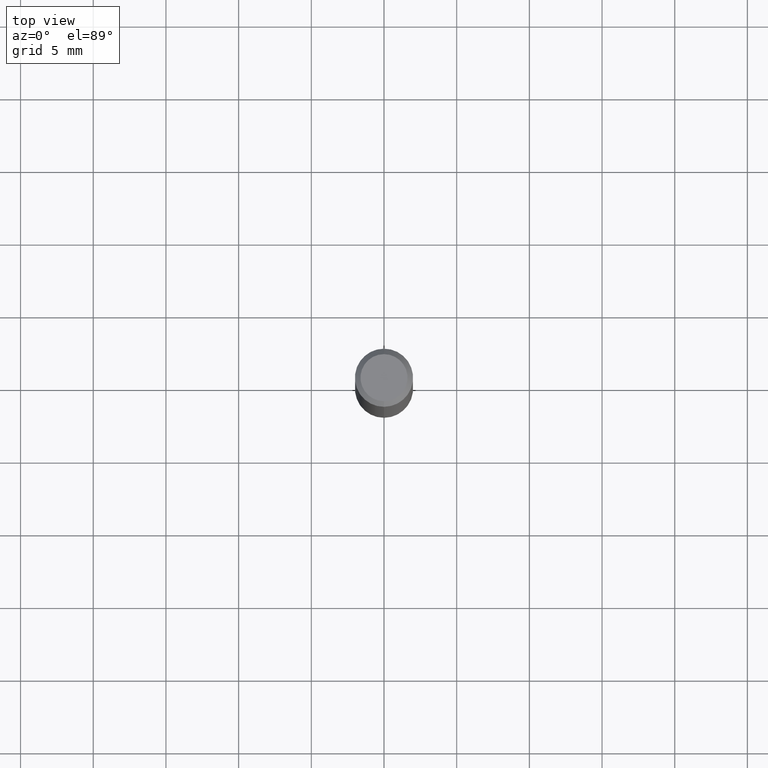
[diagram: clean part render]
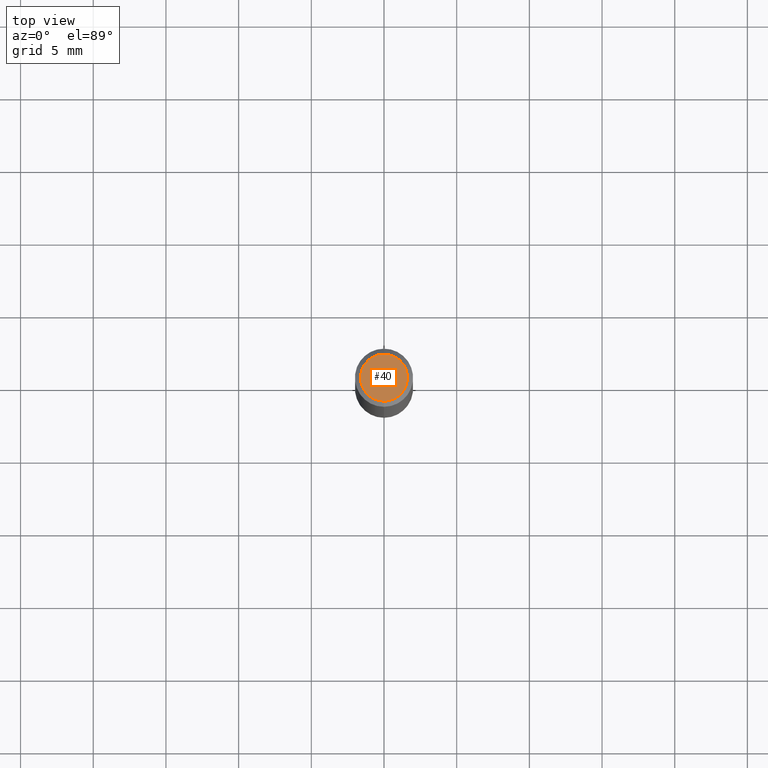
[diagram: same view with one face highlighted and labeled with its STEP entity id]
A machine part, top view. The second image highlights one B-rep face of the part: STEP entity #40.
In plain terms, the highlighted planar face has unit normal (0, -0, -1).
Its self-contained STEP definition (entity closure, byte-faithful):
#22 = DIRECTION ( 'NONE',  ( 6.982962677686265922E-15, 1.000000000000000000, -3.491914578853604397E-15 ) ) ;
#27 = CARTESIAN_POINT ( 'NONE',  ( -5.749219286118610378E-45, 8.210395684247487674E-31, 2.351259029636103343E-16 ) ) ;
#40 = ADVANCED_FACE ( 'NONE', ( #461 ), #180, .F. ) ;
#66 = VERTEX_POINT ( 'NONE', #255 ) ;
#73 = DIRECTION ( 'NONE',  ( -6.982962677686264344E-15, -1.000000000000000000, 3.491914578853603608E-15 ) ) ;
#74 = CARTESIAN_POINT ( 'NONE',  ( -4.888104823412213911E-16, -0.06375000000000000111, 4.577354573655275638E-16 ) ) ;
#126 = ORIENTED_EDGE ( 'NONE', *, *, #495, .T. ) ;
#136 = DIRECTION ( 'NONE',  ( 2.445166276302784805E-29, -3.491914578853604397E-15, -1.000000000000000000 ) ) ;
#180 = PLANE ( 'NONE',  #197 ) ;
#192 = DIRECTION ( 'NONE',  ( -2.445166276302785085E-29, 3.491914578853604397E-15, 1.000000000000000000 ) ) ;
#197 = AXIS2_PLACEMENT_3D ( 'NONE', #372, #136, #22 ) ;
#255 = CARTESIAN_POINT ( 'NONE',  ( 4.975360907851465623E-16, 0.06375000000000000111, 1.251634856169306932E-17 ) ) ;
#291 = CIRCLE ( 'NONE', #339, 0.06375000000000000111 ) ;
#323 = DIRECTION ( 'NONE',  ( -2.445166276302785085E-29, 3.491914578853604397E-15, 1.000000000000000000 ) ) ;
#339 = AXIS2_PLACEMENT_3D ( 'NONE', #27, #192, #73 ) ;
#353 = EDGE_CURVE ( 'NONE', #361, #66, #291, .T. ) ;
#355 = CARTESIAN_POINT ( 'NONE',  ( -5.749219286118610378E-45, 8.210395684247487674E-31, 2.351259029636103343E-16 ) ) ;
#361 = VERTEX_POINT ( 'NONE', #74 ) ;
#372 = CARTESIAN_POINT ( 'NONE',  ( 4.451638707024993845E-16, 0.06375000000000000111, -1.050466029201120994E-16 ) ) ;
#380 = EDGE_LOOP ( 'NONE', ( #126, #439 ) ) ;
#384 = CIRCLE ( 'NONE', #408, 0.06375000000000000111 ) ;
#405 = DIRECTION ( 'NONE',  ( -6.982962677686264344E-15, -1.000000000000000000, 3.491914578853603608E-15 ) ) ;
#408 = AXIS2_PLACEMENT_3D ( 'NONE', #355, #323, #405 ) ;
#439 = ORIENTED_EDGE ( 'NONE', *, *, #353, .T. ) ;
#461 = FACE_OUTER_BOUND ( 'NONE', #380, .T. ) ;
#495 = EDGE_CURVE ( 'NONE', #66, #361, #384, .T. ) ;